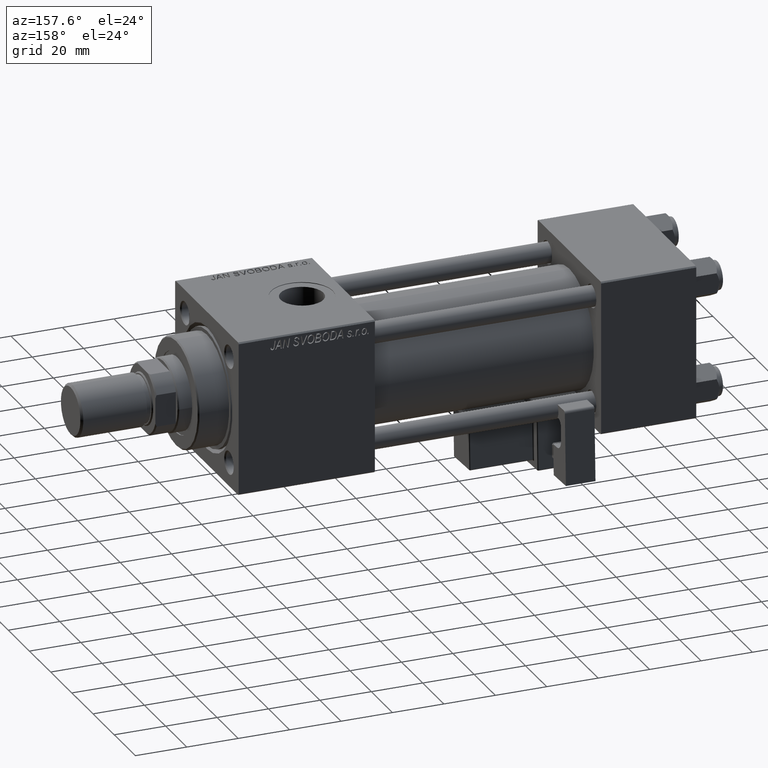
[diagram: clean part render]
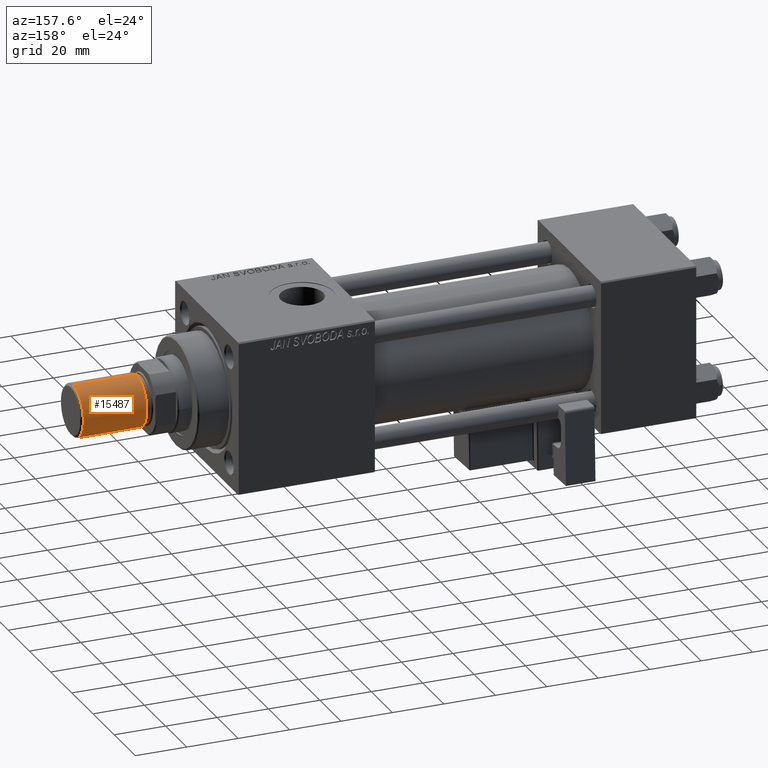
[diagram: same view with one face highlighted and labeled with its STEP entity id]
A machine part, auxiliary view. The second image highlights one B-rep face of the part: STEP entity #15487.
In plain terms, the highlighted cylindrical surface (edge-blend (fillet) strip) has radius 10 mm, axis along (1, -0, -0).
Its self-contained STEP definition (entity closure, byte-faithful):
#1215 = FACE_OUTER_BOUND ( 'NONE', #32584, .T. ) ;
#1541 = ORIENTED_EDGE ( 'NONE', *, *, #30447, .T. ) ;
#2739 = ORIENTED_EDGE ( 'NONE', *, *, #49063, .F. ) ;
#2769 = EDGE_CURVE ( 'NONE', #33486, #18367, #21634, .T. ) ;
#3336 = VERTEX_POINT ( 'NONE', #42758 ) ;
#5728 = DIRECTION ( 'NONE',  ( 1.000000000000000000, 0.000000000000000000, 0.000000000000000000 ) ) ;
#6439 = VECTOR ( 'NONE', #49701, 1000.000000000000000 ) ;
#7551 = DIRECTION ( 'NONE',  ( 1.000000000000000000, 0.000000000000000000, 0.000000000000000000 ) ) ;
#14656 = CIRCLE ( 'NONE', #30864, 10.00000000000000000 ) ;
#15487 = ADVANCED_FACE ( 'NONE', ( #1215 ), #42339, .T. ) ;
#16912 = AXIS2_PLACEMENT_3D ( 'NONE', #33793, #50083, #5728 ) ;
#18367 = VERTEX_POINT ( 'NONE', #37115 ) ;
#18623 = CARTESIAN_POINT ( 'NONE',  ( -10.00000000000000000, 0.000000000000000000, 25.50000000000000000 ) ) ;
#18797 = DIRECTION ( 'NONE',  ( -0.000000000000000000, -0.000000000000000000, 1.000000000000000000 ) ) ;
#21634 = LINE ( 'NONE', #50219, #6439 ) ;
#24009 = CARTESIAN_POINT ( 'NONE',  ( -10.00000000000000000, 0.000000000000000000, 25.50000000000000000 ) ) ;
#28916 = VECTOR ( 'NONE', #40290, 1000.000000000000000 ) ;
#30447 = EDGE_CURVE ( 'NONE', #18367, #3336, #14656, .T. ) ;
#30864 = AXIS2_PLACEMENT_3D ( 'NONE', #35591, #18797, #7551 ) ;
#32176 = VERTEX_POINT ( 'NONE', #18623 ) ;
#32584 = EDGE_LOOP ( 'NONE', ( #37134, #40846, #1541, #2739 ) ) ;
#33111 = CIRCLE ( 'NONE', #16912, 10.00000000000000000 ) ;
#33476 = CARTESIAN_POINT ( 'NONE',  ( 10.00000000000000000, 1.224646799147353256E-15, 25.50000000000000000 ) ) ;
#33486 = VERTEX_POINT ( 'NONE', #33476 ) ;
#33793 = CARTESIAN_POINT ( 'NONE',  ( 0.000000000000000000, 0.000000000000000000, 25.50000000000000000 ) ) ;
#35591 = CARTESIAN_POINT ( 'NONE',  ( 0.000000000000000000, 0.000000000000000000, 0.8000000000000055955 ) ) ;
#37115 = CARTESIAN_POINT ( 'NONE',  ( 10.00000000000000000, 1.224646799147353256E-15, 0.8000000000000055955 ) ) ;
#37134 = ORIENTED_EDGE ( 'NONE', *, *, #46092, .F. ) ;
#37453 = AXIS2_PLACEMENT_3D ( 'NONE', #50376, #46617, #41552 ) ;
#40290 = DIRECTION ( 'NONE',  ( -0.000000000000000000, -0.000000000000000000, -1.000000000000000000 ) ) ;
#40846 = ORIENTED_EDGE ( 'NONE', *, *, #2769, .T. ) ;
#41552 = DIRECTION ( 'NONE',  ( -1.000000000000000000, 0.000000000000000000, 0.000000000000000000 ) ) ;
#42339 = CYLINDRICAL_SURFACE ( 'NONE', #37453, 10.00000000000000000 ) ;
#42758 = CARTESIAN_POINT ( 'NONE',  ( -10.00000000000000000, 0.000000000000000000, 0.8000000000000055955 ) ) ;
#44282 = LINE ( 'NONE', #24009, #28916 ) ;
#46092 = EDGE_CURVE ( 'NONE', #33486, #32176, #33111, .T. ) ;
#46617 = DIRECTION ( 'NONE',  ( -0.000000000000000000, -0.000000000000000000, -1.000000000000000000 ) ) ;
#49063 = EDGE_CURVE ( 'NONE', #32176, #3336, #44282, .T. ) ;
#49701 = DIRECTION ( 'NONE',  ( -0.000000000000000000, -0.000000000000000000, -1.000000000000000000 ) ) ;
#50083 = DIRECTION ( 'NONE',  ( 0.000000000000000000, 0.000000000000000000, 1.000000000000000000 ) ) ;
#50219 = CARTESIAN_POINT ( 'NONE',  ( 10.00000000000000000, 1.224646799147353256E-15, 25.50000000000000000 ) ) ;
#50376 = CARTESIAN_POINT ( 'NONE',  ( 0.000000000000000000, 0.000000000000000000, 25.50000000000000000 ) ) ;